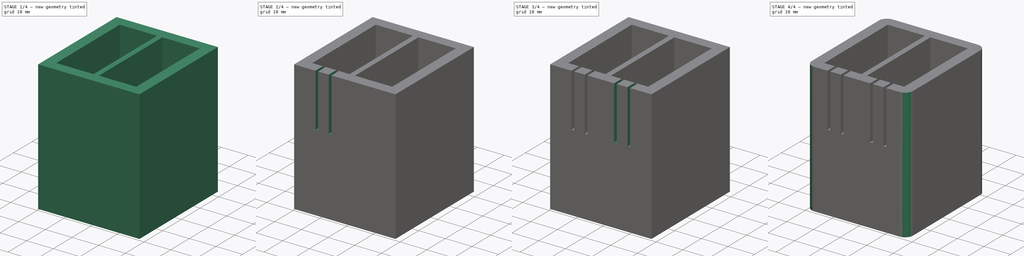
[diagram: build sequence overview — one tinted view per stage of 4, left to right]
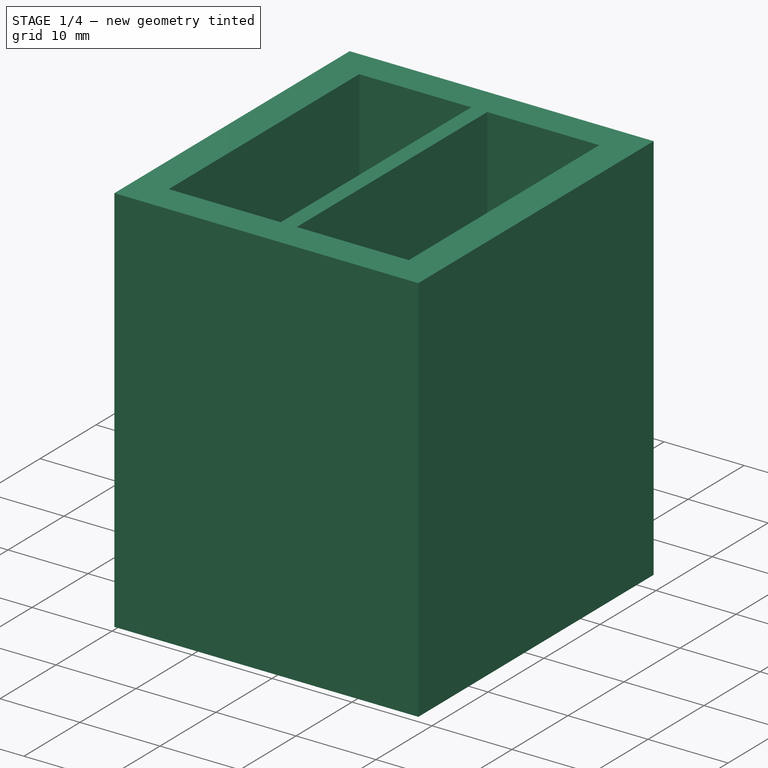
[diagram: stage 1 of 4 — iso view after this stage's code; geometry added in this stage tinted green]
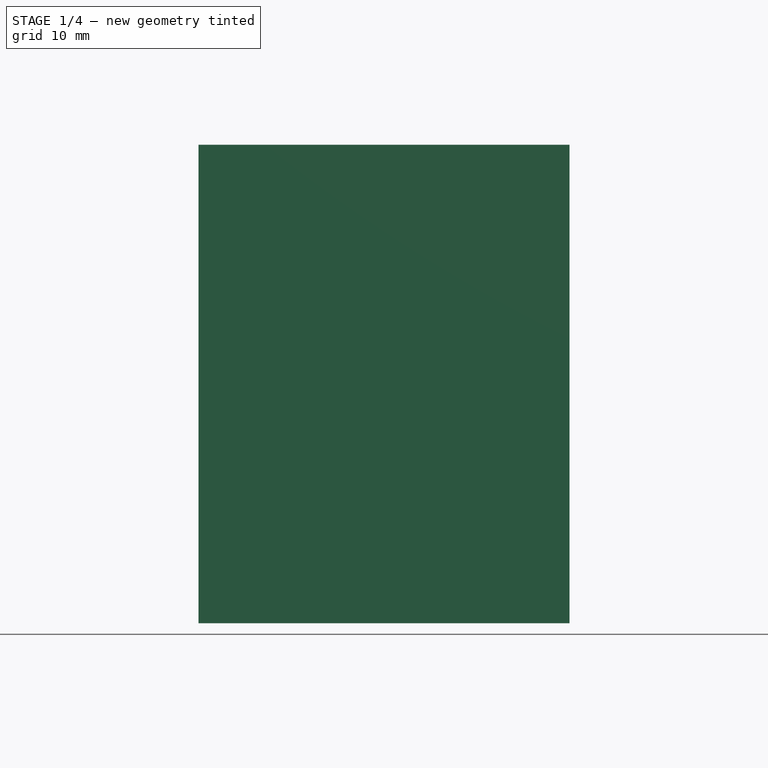
[diagram: stage 1 of 4 — front view after this stage's code; geometry added in this stage tinted green]
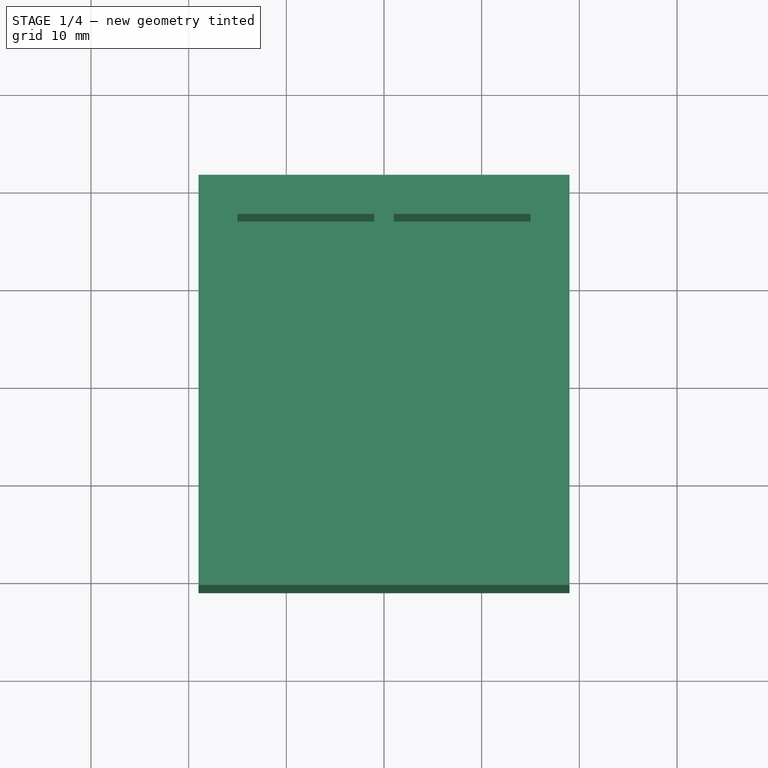
[diagram: stage 1 of 4 — top view after this stage's code; geometry added in this stage tinted green]
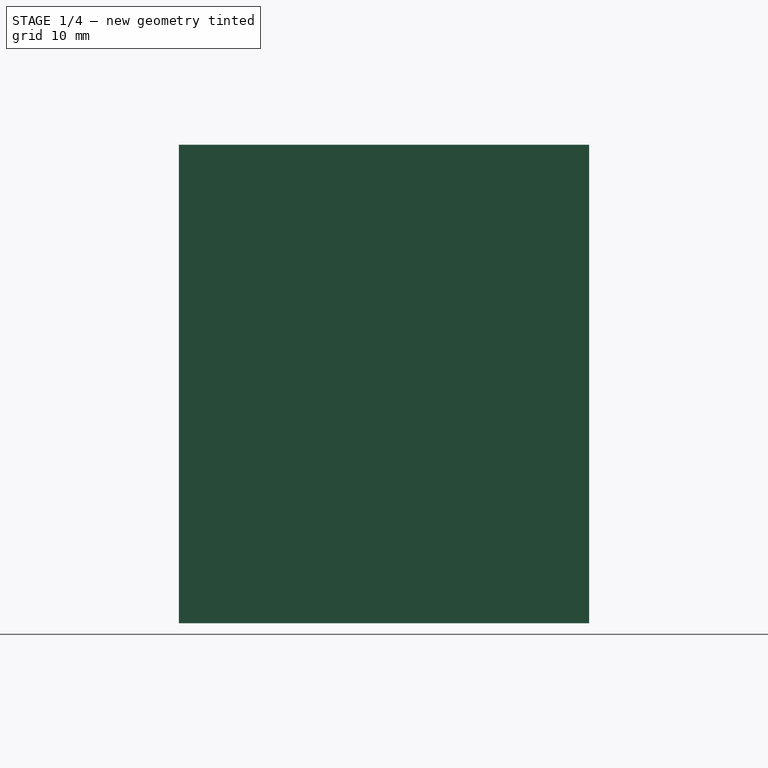
[diagram: stage 1 of 4 — right view after this stage's code; geometry added in this stage tinted green]
FCSTD DOCUMENT  (FreeCAD 0.19R24291 (Git))
Label: GoProHero10BatteryCase
License: All rights reserved
LicenseURL: http://en.wikipedia.org/wiki/All_rights_reserved
objects: Sketcher::SketchObject×5, PartDesign::Pad×4, PartDesign::Mirrored×3, PartDesign::Pocket×1, PartDesign::Fillet×1, Part::Part2DObjectPython×1, PartDesign::Body×1, Part::Extrusion×1, Part::Cut×1
note: 24 computed .brp shape members not serialized (recipe doc carries the construction recipe); baked Part::Feature solids carry a one-line shape summary decoded from their .brp

FEATURE [Sketcher::SketchObject] Sketch
  FullyConstrained = true
  MapMode = 5
  Support = -> [XY_Plane]
  expr: Constraints[10] = -Constraints[8] / 2
  expr: Constraints[11] = Constraints[9] / 2
  sketch-geometry (4):
    g0: LineSegment StartX=-19 StartY=-21 StartZ=0 EndX=19 EndY=-21 EndZ=0
    g1: LineSegment StartX=19 StartY=-21 StartZ=0 EndX=19 EndY=21 EndZ=0
    g2: LineSegment StartX=19 StartY=21 StartZ=0 EndX=-19 EndY=21 EndZ=0
    g3: LineSegment StartX=-19 StartY=21 StartZ=0 EndX=-19 EndY=-21 EndZ=0
  constraints (12):
    c: Coincident(g0,g1)
    c: Coincident(g1,g2)
    c: Coincident(g2,g3)
    c: Coincident(g3,g0)
    c: Horizontal(g0)
    c: Horizontal(g2)
    c: Vertical(g1)
    c: Vertical(g3)
    c: Distance(g2) = 38
    c: Distance(g1) = 42
    c: DistanceX(g-2,g2) = -19
    c: DistanceY(g-1,g1) = 21
FEATURE [PartDesign::Pad] Pad
  Direction = (1,1,1)
  Length = 4
  Length2 = 100
  Profile = -> Sketch
  Type = 0
FEATURE [Sketcher::SketchObject] Sketch001
  ExternalGeometry = -> [Pad]
  FullyConstrained = true
  MapMode = 5
  Placement = pos=(0,0,4) rot=(0,0,1;0rad)
  Support = -> [Pad]
  expr: Constraints[19] = Constraints[18]
  expr: Constraints[23] = Constraints[18]
  expr: Constraints[20] = Constraints[16]
  expr: Constraints[21] = Constraints[17]
  expr: Constraints[22] = Constraints[18]
  sketch-geometry (12):
    g0: LineSegment StartX=-15 StartY=-17 StartZ=0 EndX=-1 EndY=-17 EndZ=0
    g1: LineSegment StartX=-1 StartY=-17 StartZ=0 EndX=-1 EndY=17 EndZ=0
    g2: LineSegment StartX=-1 StartY=17 StartZ=0 EndX=-15 EndY=17 EndZ=0
    g3: LineSegment StartX=-15 StartY=17 StartZ=0 EndX=-15 EndY=-17 EndZ=0
    g4: LineSegment StartX=1 StartY=-17 StartZ=0 EndX=15 EndY=-17 EndZ=0
    g5: LineSegment StartX=15 StartY=-17 StartZ=0 EndX=15 EndY=17 EndZ=0
    g6: LineSegment StartX=15 StartY=17 StartZ=0 EndX=1 EndY=17 EndZ=0
    g7: LineSegment StartX=1 StartY=17 StartZ=0 EndX=1 EndY=-17 EndZ=0
    g8: LineSegment StartX=-19 StartY=-21 StartZ=0 EndX=19 EndY=-21 EndZ=0
    g9: LineSegment StartX=19 StartY=-21 StartZ=0 EndX=19 EndY=21 EndZ=0
    g10: LineSegment StartX=19 StartY=21 StartZ=0 EndX=-19 EndY=21 EndZ=0
    g11: LineSegment StartX=-19 StartY=21 StartZ=0 EndX=-19 EndY=-21 EndZ=0
  constraints (34):
    c: Coincident(g0,g1)
    c: Coincident(g1,g2)
    c: Coincident(g2,g3)
    c: Coincident(g3,g0)
    c: Horizontal(g0)
    c: Horizontal(g2)
    c: Vertical(g1)
    c: Vertical(g3)
    c: Coincident(g4,g5)
    c: Coincident(g5,g6)
    c: Coincident(g6,g7)
    c: Coincident(g7,g4)
    c: Horizontal(g4)
    c: Horizontal(g6)
    c: Vertical(g5)
    c: Vertical(g7)
    c: Distance(g2) = 14
    c: Distance(g3) = 34
    c: Distance(g2,g-3) = 4
    c: Distance(g0,g-4) = 4
    c: Distance(g6) = 14
    c: Distance(g5) = 34
    c: Distance(g5,g-3) = 4
    c: Distance(g5,g-6) = 4
    c: Coincident(g8,g9)
    c: Coincident(g9,g10)
    c: Coincident(g10,g11)
    c: Coincident(g11,g8)
    c: Horizontal(g8)
    c: Horizontal(g10)
    c: Vertical(g9)
    c: Vertical(g11)
    c: Coincident(g8,g-5)
    c: Coincident(g9,g-6)
FEATURE [PartDesign::Pad] Pad001
  BaseFeature = -> Pad
  Direction = (1,1,1)
  Length = 45
  Length2 = 100
  Profile = -> Sketch001
  Type = 0
FEATURE [Part::Part2DObjectPython] ShapeString  # Draft 2D object (typed FeaturePython)
  FontFile = <path>
  Placement = pos=(-14,1.43,0) rot=(1,0,0;3.14159rad)
  Size = 3
  String = Hero 9/10
  Tracking = 0
FEATURE [PartDesign::Body] Body  label="Duo"
  Group = -> [Sketch,Pad,Sketch001,Pad001,Sketch002,Pad002,Mirrored,Sketch003,Pocket,Mirrored001,Sketch004,Pad003,Mirrored002,Fillet,ShapeString]
  Origin = -> Origin
  Tip = -> Fillet
FEATURE [Part::Extrusion] Extrude
  Base = -> ShapeString
  Dir = (0,0,-1)
  DirMode = 2
  FaceMakerClass = Part::FaceMakerBullseye
  LengthFwd = -2
  LengthRev = 0
  Solid = false
  Symmetric = false
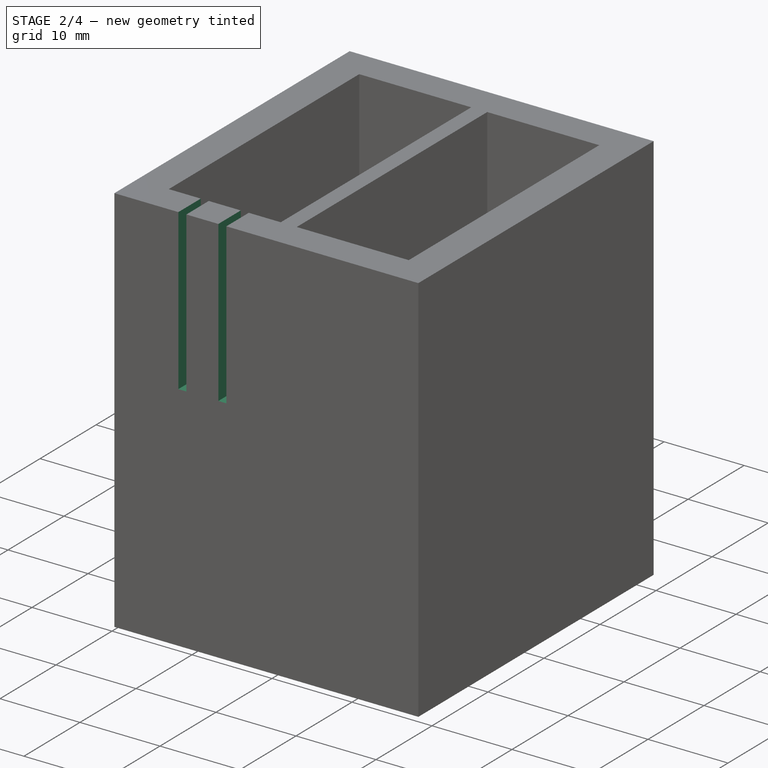
[diagram: stage 2 of 4 — iso view after this stage's code; geometry added in this stage tinted green]
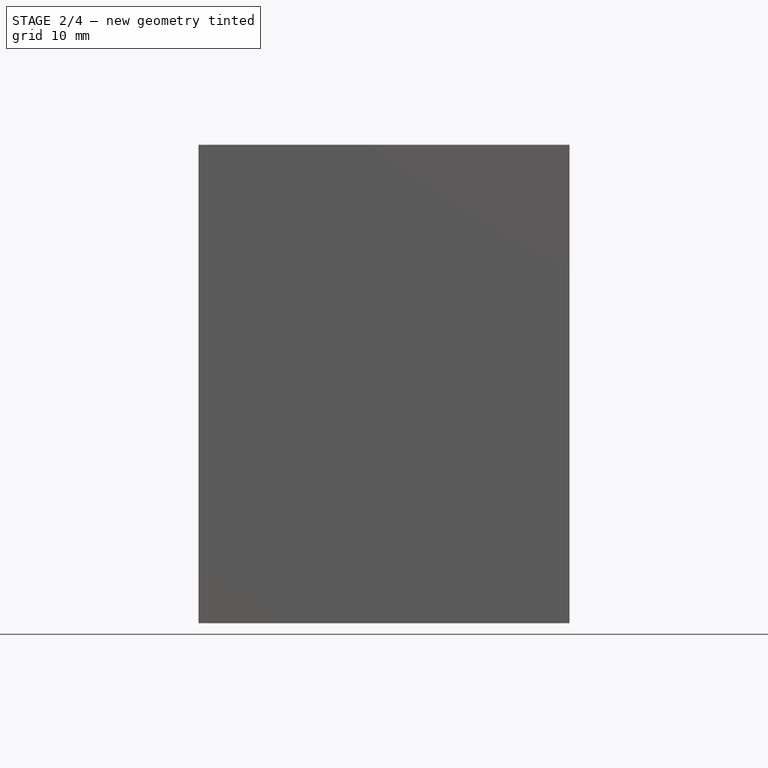
[diagram: stage 2 of 4 — front view after this stage's code; geometry added in this stage tinted green]
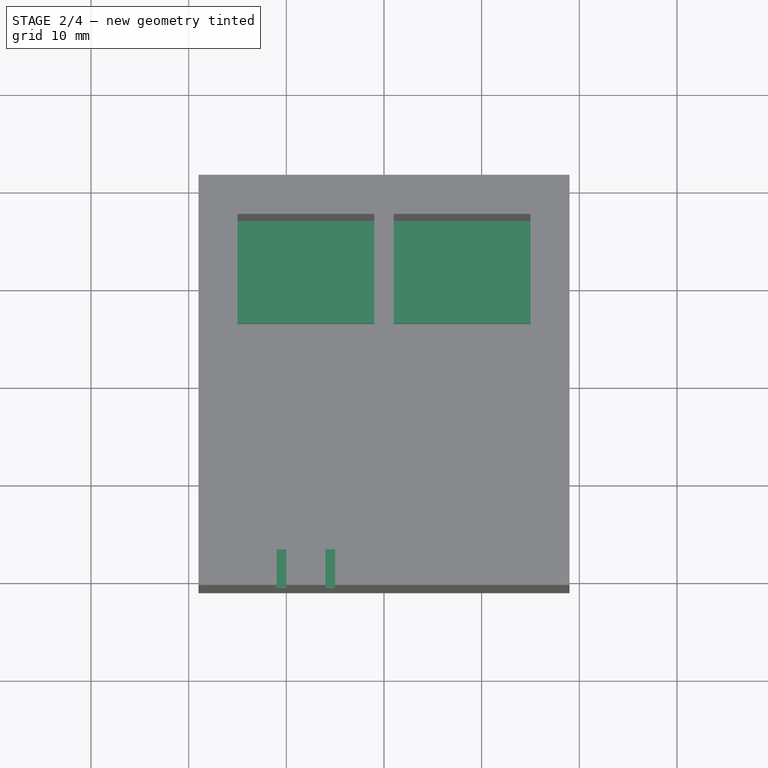
[diagram: stage 2 of 4 — top view after this stage's code; geometry added in this stage tinted green]
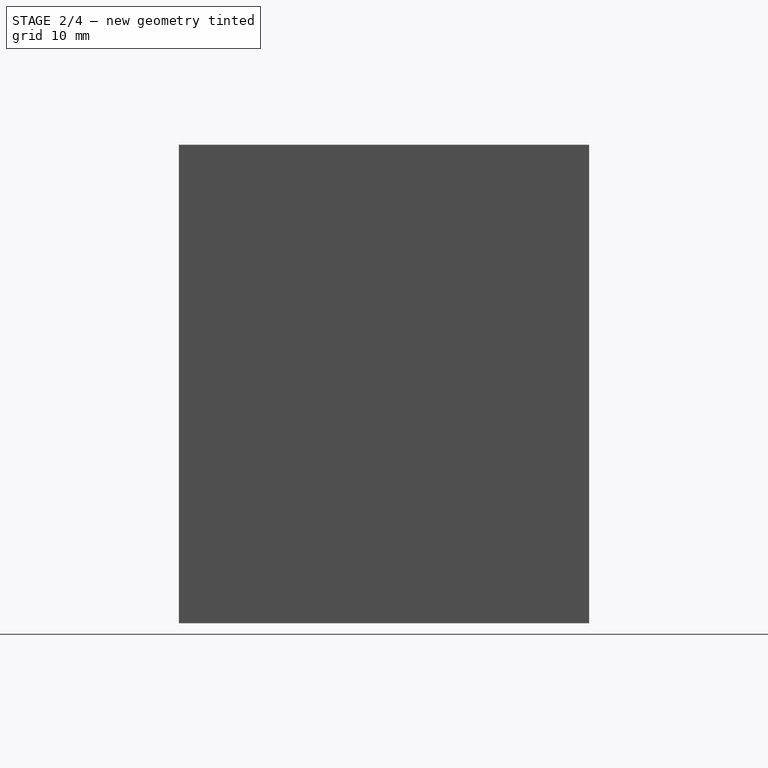
[diagram: stage 2 of 4 — right view after this stage's code; geometry added in this stage tinted green]
FEATURE [Sketcher::SketchObject] Sketch002
  ExternalGeometry = -> [Pad001]
  FullyConstrained = true
  MapMode = 5
  Placement = pos=(0,0,4) rot=(0,0,1;0rad)
  Support = -> [Pad001]
  sketch-geometry (4):
    g0: LineSegment StartX=1 StartY=17 StartZ=0 EndX=15 EndY=17 EndZ=0
    g1: LineSegment StartX=15 StartY=17 StartZ=0 EndX=15 EndY=6.5 EndZ=0
    g2: LineSegment StartX=15 StartY=6.5 StartZ=0 EndX=1 EndY=6.5 EndZ=0
    g3: LineSegment StartX=1 StartY=6.5 StartZ=0 EndX=1 EndY=17 EndZ=0
  constraints (11):
    c: Coincident(g0,g1)
    c: Coincident(g1,g2)
    c: Coincident(g2,g3)
    c: Coincident(g3,g0)
    c: Horizontal(g0)
    c: Horizontal(g2)
    c: Vertical(g1)
    c: Vertical(g3)
    c: Coincident(g0,g-4)
    c: PointOnObject(g1,g-5)
    c: Distance(g1) = 10.5
FEATURE [PartDesign::Pad] Pad002
  BaseFeature = -> Pad001
  Direction = (1,1,1)
  Length = 3
  Length2 = 100
  Profile = -> Sketch002
  Type = 0
FEATURE [PartDesign::Mirrored] Mirrored
  BaseFeature = -> Pad002
  MirrorPlane = -> Sketch002 [V_Axis]
  Originals = -> [Pad002]
FEATURE [Sketcher::SketchObject] Sketch003
  ExternalGeometry = -> [Mirrored]
  FullyConstrained = true
  MapMode = 5
  Placement = pos=(0,0,49) rot=(0,0,1;0rad)
  Support = -> [Mirrored]
  expr: Constraints[29] = Constraints[28]
  sketch-geometry (13):
    g0: LineSegment StartX=-15 StartY=-17 StartZ=0 EndX=-8 EndY=-17 EndZ=0
    g1: LineSegment StartX=-1 StartY=-17 StartZ=0 EndX=-8 EndY=-17 EndZ=0
    g2: LineSegment StartX=-8 StartY=-17 StartZ=0 EndX=-8 EndY=-21 EndZ=0
    g3: LineSegment StartX=-11 StartY=-21 StartZ=0 EndX=-10 EndY=-21 EndZ=0
    g4: LineSegment StartX=-10 StartY=-21 StartZ=0 EndX=-10 EndY=-17 EndZ=0
    g5: LineSegment StartX=-10 StartY=-17 StartZ=0 EndX=-11 EndY=-17 EndZ=0
    g6: LineSegment StartX=-11 StartY=-17 StartZ=0 EndX=-11 EndY=-21 EndZ=0
    g7: LineSegment StartX=-6 StartY=-21 StartZ=0 EndX=-5 EndY=-21 EndZ=0
    g8: LineSegment StartX=-5 StartY=-21 StartZ=0 EndX=-5 EndY=-17 EndZ=0
    g9: LineSegment StartX=-5 StartY=-17 StartZ=0 EndX=-6 EndY=-17 EndZ=0
    g10: LineSegment StartX=-6 StartY=-17 StartZ=0 EndX=-6 EndY=-21 EndZ=0
    g11: LineSegment StartX=-10 StartY=-17 StartZ=0 EndX=-8 EndY=-17 EndZ=0
    g12: LineSegment StartX=-8 StartY=-17 StartZ=0 EndX=-6 EndY=-17 EndZ=0
  constraints (36):
    c: Coincident(g0,g-3)
    c: PointOnObject(g0,g-3)
    c: Coincident(g1,g-3)
    c: Coincident(g1,g0)
    c: Equal(g1,g0)
    c: Coincident(g2,g0)
    c: PointOnObject(g2,g-5)
    c: Vertical(g2)
    c: Coincident(g3,g4)
    c: Coincident(g4,g5)
    c: Coincident(g5,g6)
    c: Coincident(g6,g3)
    c: Horizontal(g3)
    c: Horizontal(g5)
    c: Vertical(g4)
    c: Vertical(g6)
    c: PointOnObject(g3,g-5)
    c: PointOnObject(g4,g0)
    c: Coincident(g7,g8)
    c: Coincident(g8,g9)
    c: Coincident(g9,g10)
    c: Coincident(g10,g7)
    c: Horizontal(g7)
    c: Horizontal(g9)
    c: Vertical(g8)
    c: Vertical(g10)
    c: PointOnObject(g7,g-5)
    c: PointOnObject(g8,g1)
    c: Distance(g5) = 1
    c: Distance(g9) = 1
    c: Coincident(g11,g4)
    c: Coincident(g11,g0)
    c: Coincident(g12,g0)
    c: Coincident(g12,g9)
    c: Equal(g11,g12)
    c: Distance(g11) = 2
FEATURE [PartDesign::Pocket] Pocket
  BaseFeature = -> Mirrored
  Length = 20
  Length2 = 100
  Profile = -> Sketch003
  Type = 0
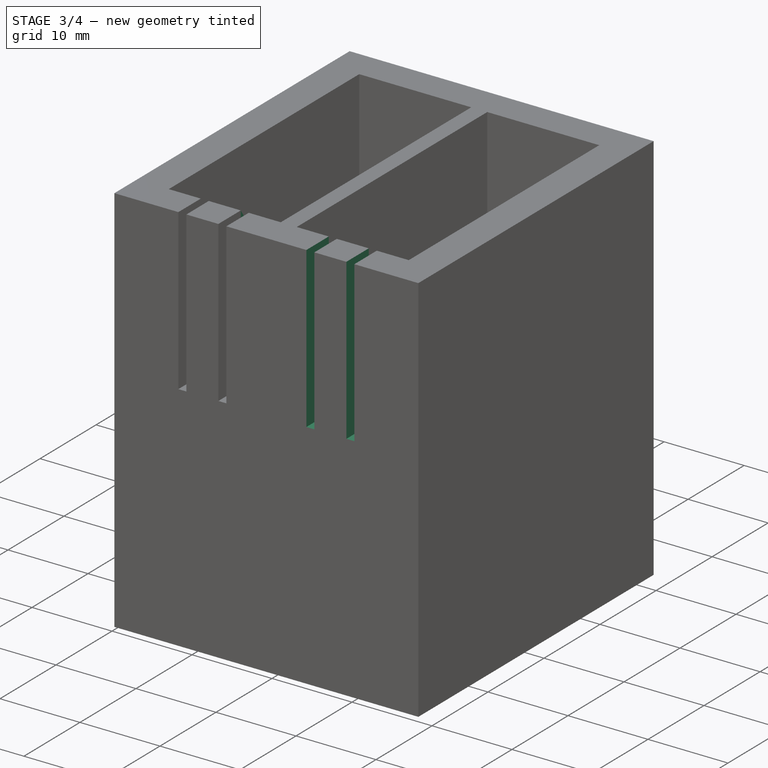
[diagram: stage 3 of 4 — iso view after this stage's code; geometry added in this stage tinted green]
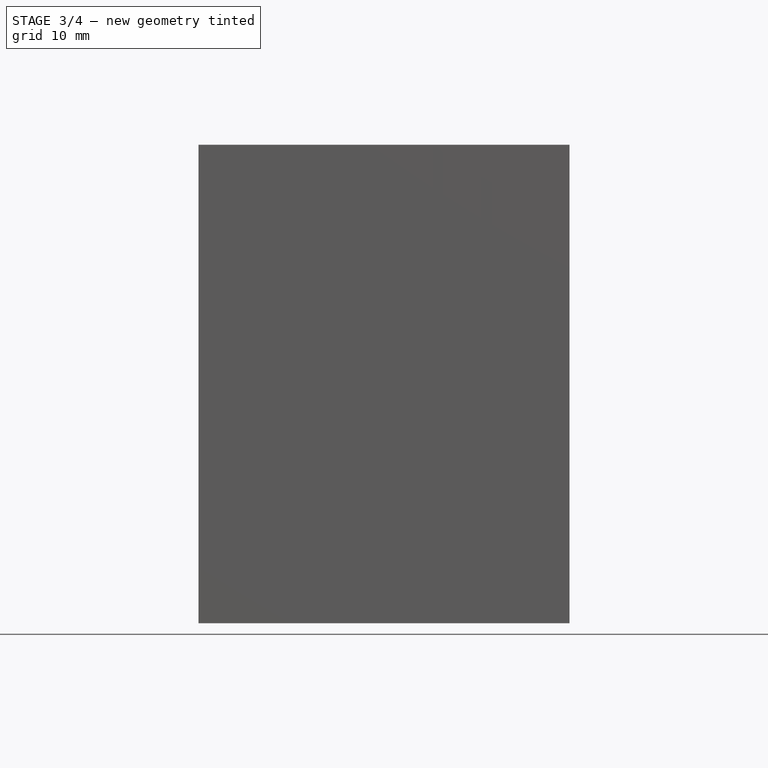
[diagram: stage 3 of 4 — front view after this stage's code; geometry added in this stage tinted green]
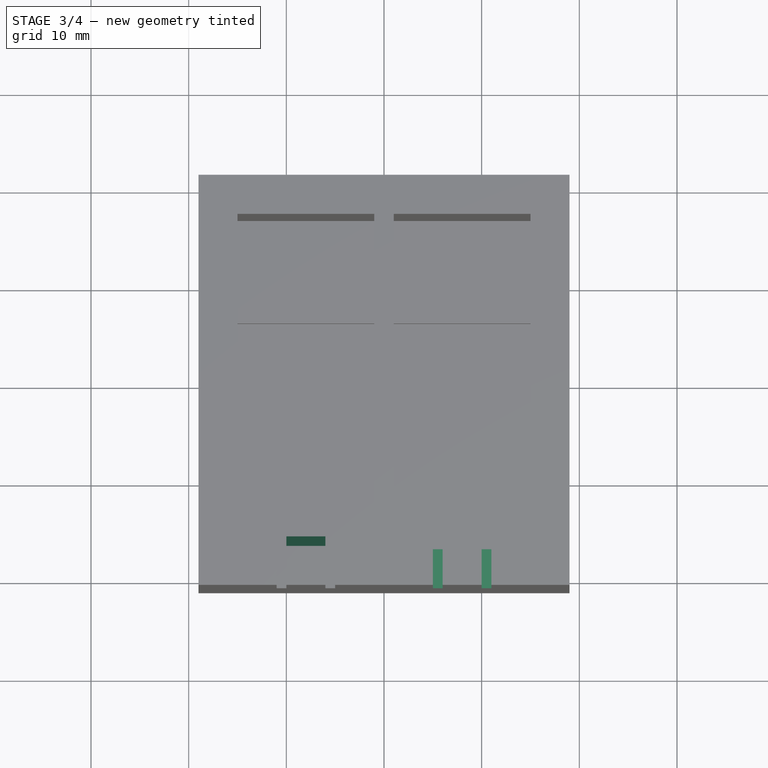
[diagram: stage 3 of 4 — top view after this stage's code; geometry added in this stage tinted green]
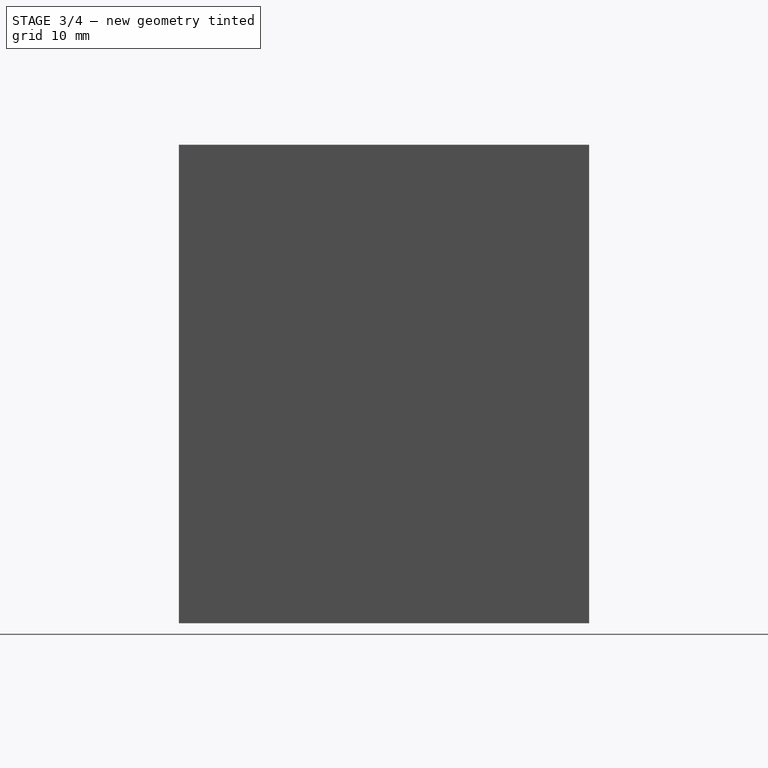
[diagram: stage 3 of 4 — right view after this stage's code; geometry added in this stage tinted green]
FEATURE [PartDesign::Mirrored] Mirrored001
  BaseFeature = -> Pocket
  MirrorPlane = -> Sketch003 [V_Axis]
  Originals = -> [Pocket]
FEATURE [Sketcher::SketchObject] Sketch004
  ExternalGeometry = -> [Mirrored001]
  FullyConstrained = true
  MapMode = 5
  Placement = pos=(-6,0,0) rot=(0.57735,0.57735,0.57735;2.0944rad)
  Support = -> [Mirrored001]
  sketch-geometry (3):
    g0: LineSegment StartX=-17 StartY=49 StartZ=0 EndX=-16 EndY=47.5 EndZ=0
    g1: LineSegment StartX=-16 StartY=47.5 StartZ=0 EndX=-17 EndY=46 EndZ=0
    g2: LineSegment StartX=-17 StartY=46 StartZ=0 EndX=-17 EndY=49 EndZ=0
  constraints (8):
    c: Coincident(g0,g-4)
    c: Coincident(g1,g0)
    c: PointOnObject(g1,g-4)
    c: Coincident(g2,g1)
    c: Coincident(g2,g0)
    c: Equal(g0,g1)
    c: Distance(g0,g2) = 1
    c: Distance(g2) = 3
FEATURE [PartDesign::Pad] Pad003
  BaseFeature = -> Mirrored001
  Direction = (1,1,1)
  Length = 10
  Length2 = 100
  Profile = -> Sketch004
  Reversed = true
  Type = 3
  UpToFace = -> Mirrored001 [Face21]
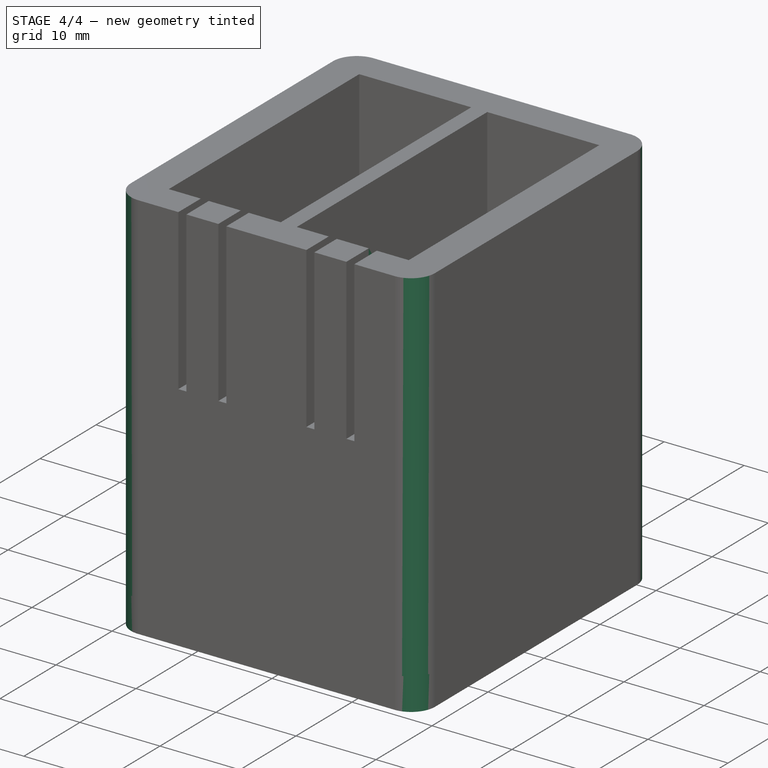
[diagram: stage 4 of 4 — iso view after this stage's code; geometry added in this stage tinted green]
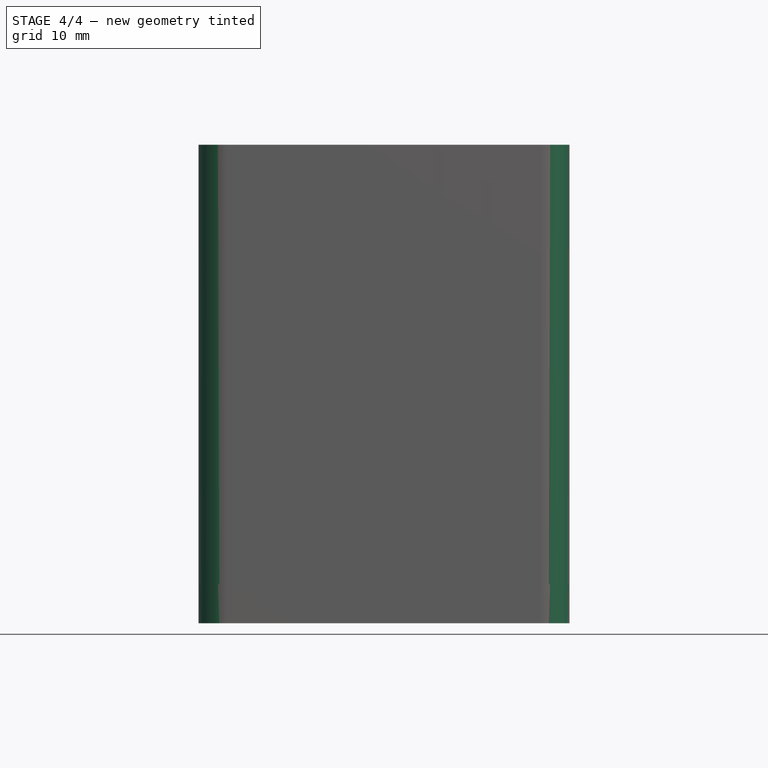
[diagram: stage 4 of 4 — front view after this stage's code; geometry added in this stage tinted green]
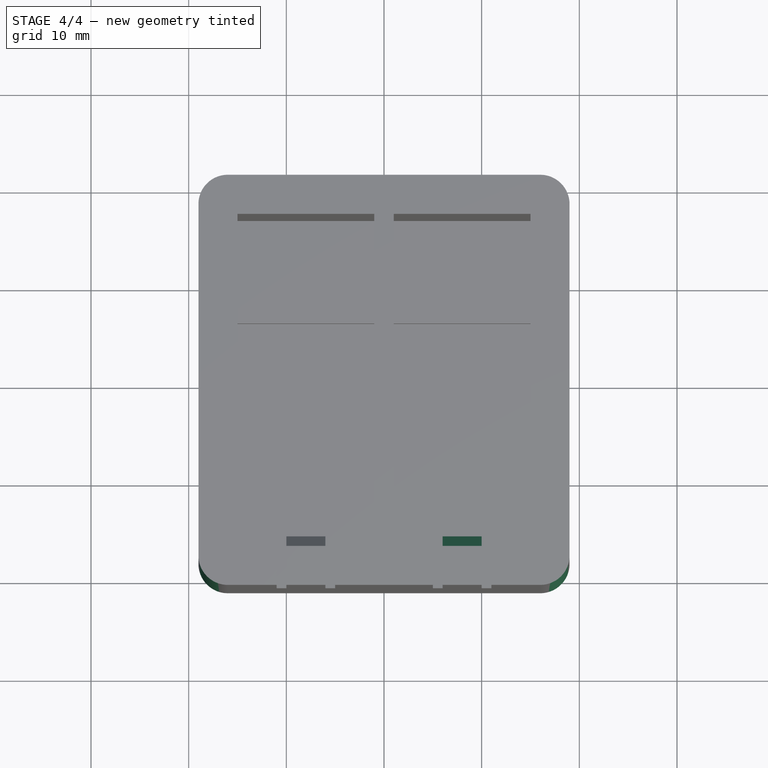
[diagram: stage 4 of 4 — top view after this stage's code; geometry added in this stage tinted green]
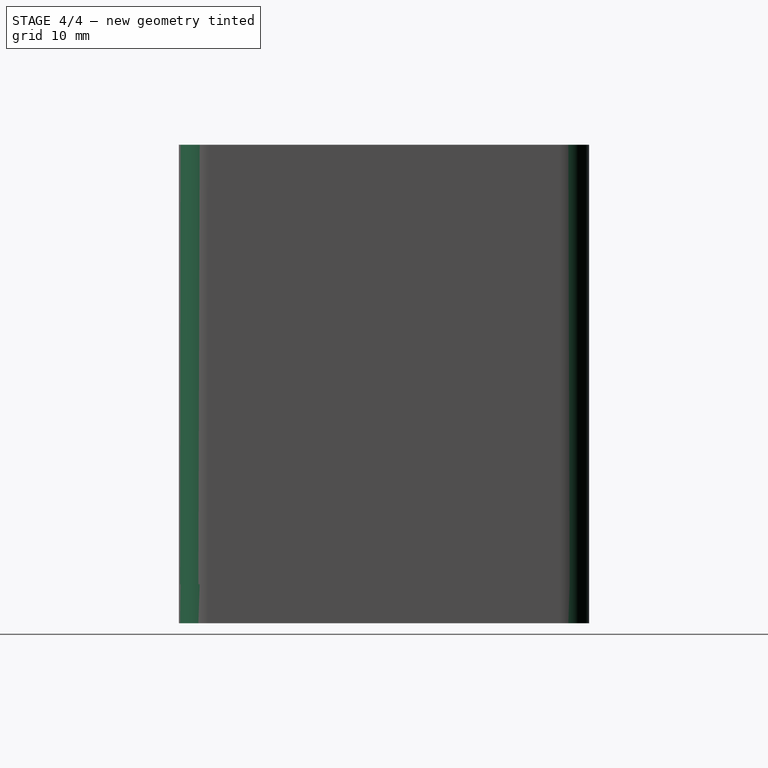
[diagram: stage 4 of 4 — right view after this stage's code; geometry added in this stage tinted green]
FEATURE [PartDesign::Mirrored] Mirrored002
  BaseFeature = -> Pad003
  MirrorPlane = -> YZ_Plane
  Originals = -> [Pad003]
FEATURE [PartDesign::Fillet] Fillet
  Base = -> Mirrored002 [Edge8,Edge34,Edge32,Edge5,Edge30,Edge1,Edge12,Edge2]
  BaseFeature = -> Mirrored002
  Radius = 3
  SupportTransform = false
FEATURE [Part::Cut] Cut
  Base = -> Body
  Tool = -> Extrude
note: 1 file-system path scrubbed to <path> (originals preserved in the JSON sidecar)
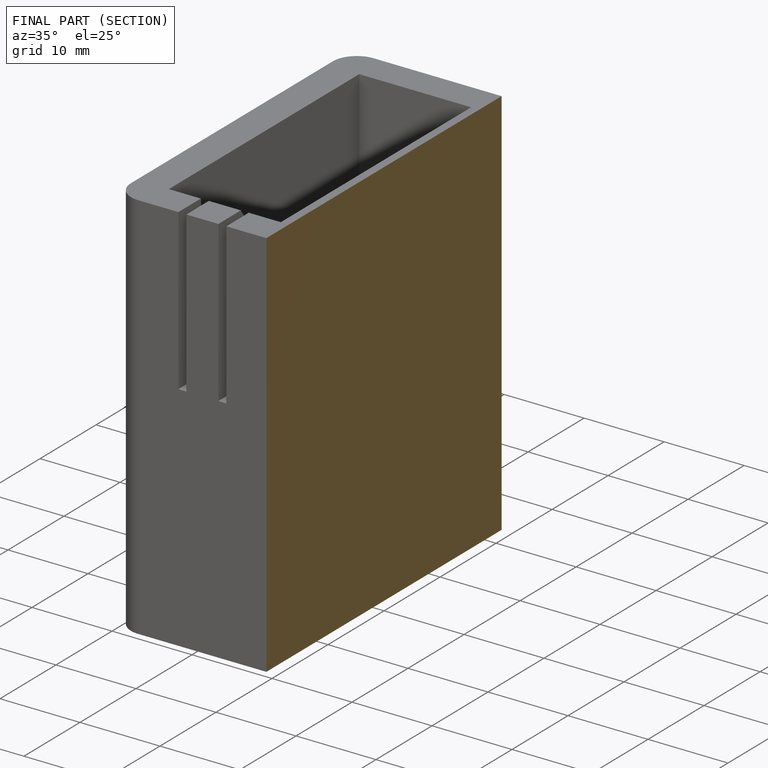
[diagram: finished part — half-section view (interior)]
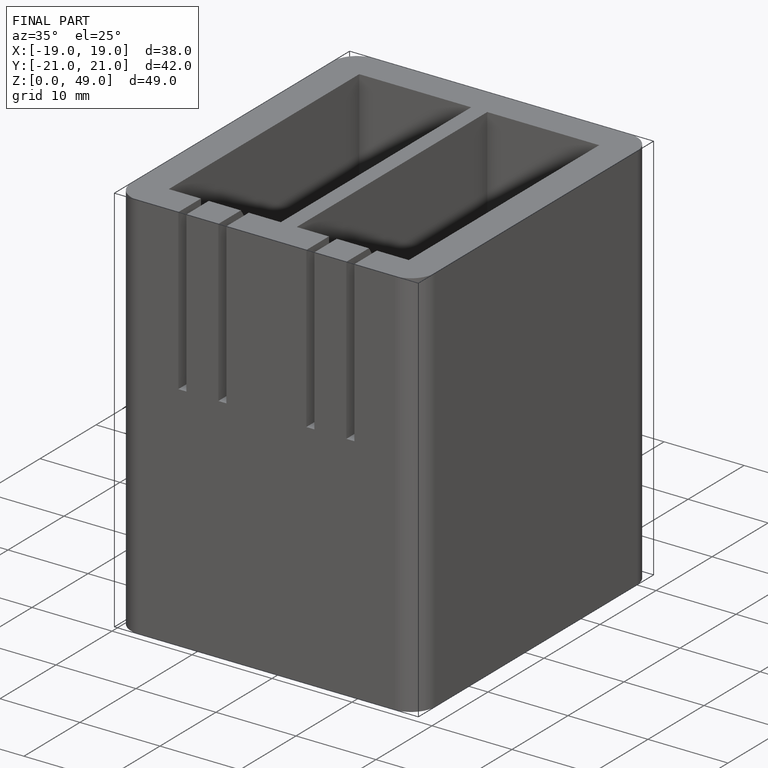
[diagram: finished part — iso view with bounding-box wireframe]
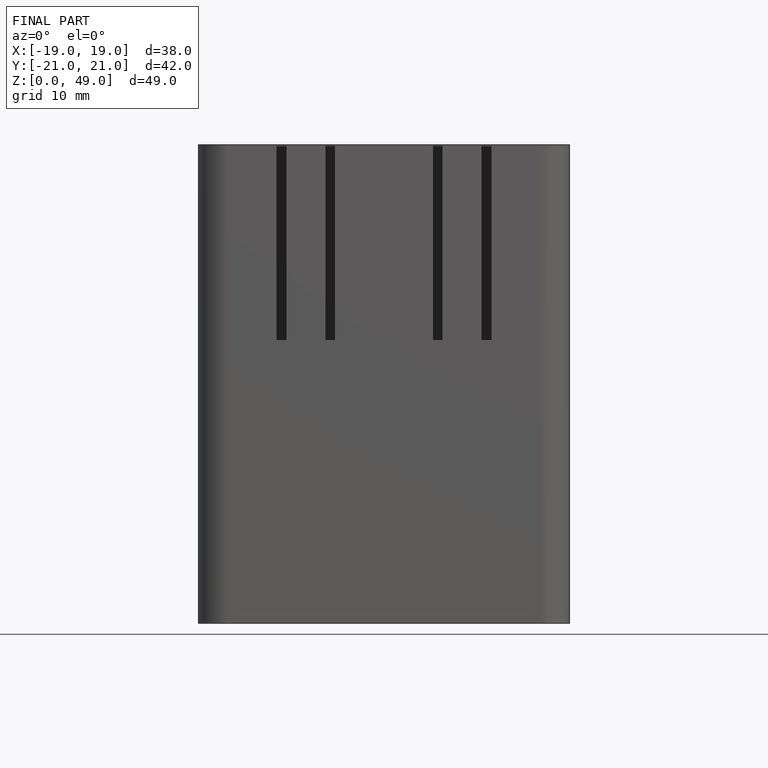
[diagram: finished part — front view with bounding-box wireframe]
